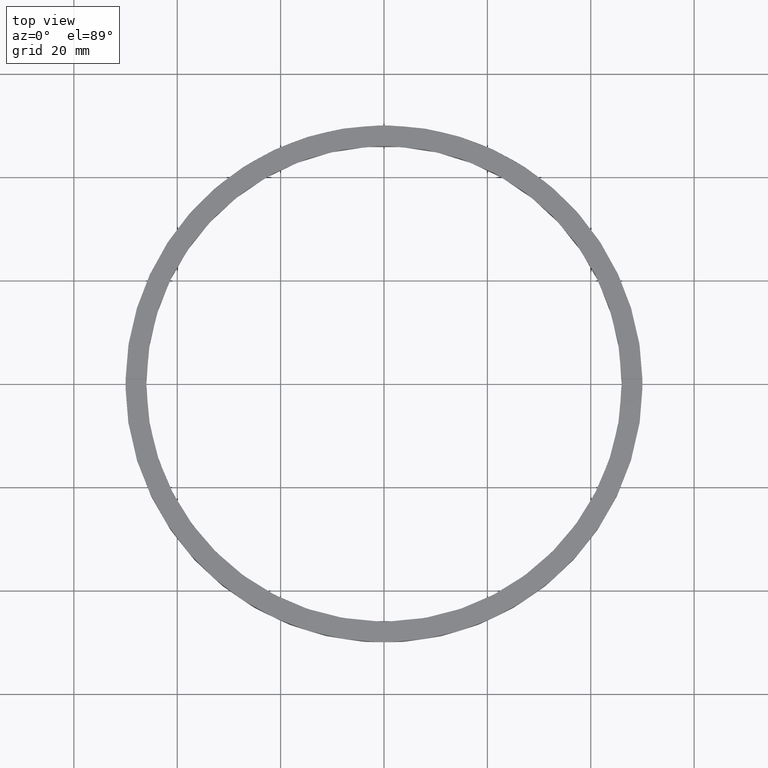
[diagram: clean part render]
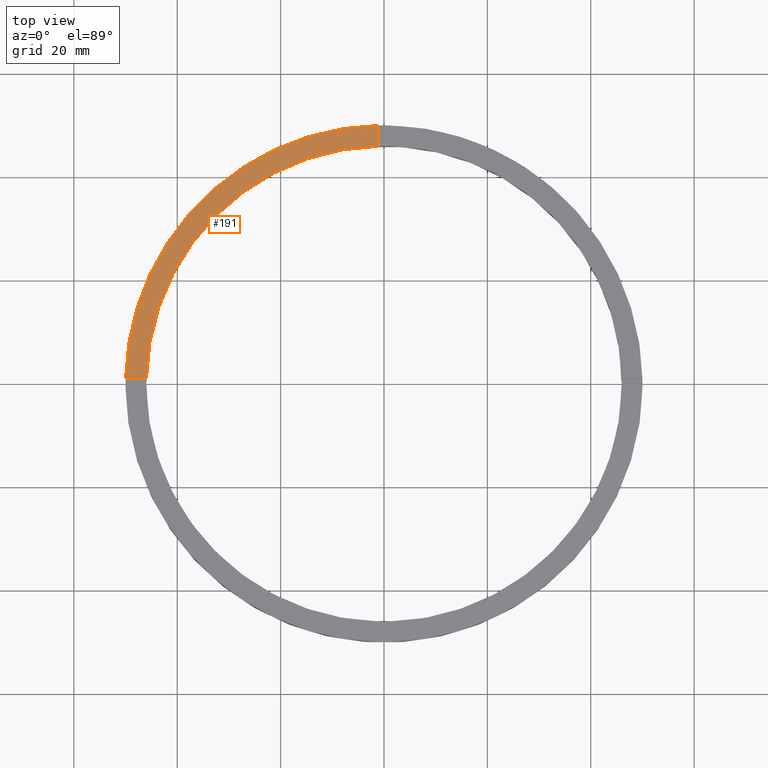
[diagram: same view with one face highlighted and labeled with its STEP entity id]
A machine part, top view. The second image highlights one B-rep face of the part: STEP entity #191.
In plain terms, the highlighted planar face has unit normal (0, 0, 1).
Its self-contained STEP definition (entity closure, byte-faithful):
#41 = EDGE_LOOP ( 'NONE', ( #381, #462, #100, #724 ) ) ;
#47 = VERTEX_POINT ( 'NONE', #343 ) ;
#67 = DIRECTION ( 'NONE',  ( 0.000000000000000000, 0.000000000000000000, 1.000000000000000000 ) ) ;
#95 = VERTEX_POINT ( 'NONE', #136 ) ;
#100 = ORIENTED_EDGE ( 'NONE', *, *, #532, .F. ) ;
#136 = CARTESIAN_POINT ( 'NONE',  ( -45.98912915026767223, 0.9999999999999694689, 5.000000000000000000 ) ) ;
#148 = CARTESIAN_POINT ( 'NONE',  ( -40.00000000000018474, 0.9999999999999705791, 5.000000000000000000 ) ) ;
#175 = CARTESIAN_POINT ( 'NONE',  ( 0.000000000000000000, 0.000000000000000000, 5.000000000000000000 ) ) ;
#191 = ADVANCED_FACE ( 'NONE', ( #587 ), #267, .T. ) ;
#197 = VERTEX_POINT ( 'NONE', #515 ) ;
#256 = CIRCLE ( 'NONE', #738, 50.00000000000000000 ) ;
#258 = VECTOR ( 'NONE', #533, 1000.000000000000000 ) ;
#267 = PLANE ( 'NONE',  #603 ) ;
#270 = EDGE_CURVE ( 'NONE', #47, #95, #584, .T. ) ;
#311 = DIRECTION ( 'NONE',  ( -1.000000000000000000, -1.951563910473907735E-16, 0.000000000000000000 ) ) ;
#327 = CARTESIAN_POINT ( 'NONE',  ( 0.000000000000000000, 0.000000000000000000, 5.000000000000000000 ) ) ;
#343 = CARTESIAN_POINT ( 'NONE',  ( -1.000000000000026867, 45.98912915026767223, 5.000000000000000000 ) ) ;
#358 = DIRECTION ( 'NONE',  ( 1.000000000000000000, 0.000000000000000000, -0.000000000000000000 ) ) ;
#372 = DIRECTION ( 'NONE',  ( 1.000000000000000000, 0.000000000000000000, 0.000000000000000000 ) ) ;
#381 = ORIENTED_EDGE ( 'NONE', *, *, #642, .F. ) ;
#413 = AXIS2_PLACEMENT_3D ( 'NONE', #327, #435, #610 ) ;
#435 = DIRECTION ( 'NONE',  ( 0.000000000000000000, 0.000000000000000000, 1.000000000000000000 ) ) ;
#462 = ORIENTED_EDGE ( 'NONE', *, *, #639, .T. ) ;
#491 = LINE ( 'NONE', #148, #755 ) ;
#515 = CARTESIAN_POINT ( 'NONE',  ( -1.000000000000026867, 49.98999899979995121, 5.000000000000000000 ) ) ;
#522 = CARTESIAN_POINT ( 'NONE',  ( -1.000000000000026867, 40.00000000000000000, 5.000000000000000000 ) ) ;
#532 = EDGE_CURVE ( 'NONE', #95, #686, #491, .T. ) ;
#533 = DIRECTION ( 'NONE',  ( -0.000000000000000000, -1.000000000000000000, -0.000000000000000000 ) ) ;
#553 = CARTESIAN_POINT ( 'NONE',  ( -49.98999899979995121, 0.9999999999999685807, 5.000000000000000000 ) ) ;
#564 = CARTESIAN_POINT ( 'NONE',  ( 0.000000000000000000, 0.000000000000000000, 5.000000000000000000 ) ) ;
#584 = CIRCLE ( 'NONE', #413, 46.00000000000000000 ) ;
#587 = FACE_OUTER_BOUND ( 'NONE', #41, .T. ) ;
#603 = AXIS2_PLACEMENT_3D ( 'NONE', #564, #67, #358 ) ;
#610 = DIRECTION ( 'NONE',  ( 1.000000000000000000, 0.000000000000000000, 0.000000000000000000 ) ) ;
#639 = EDGE_CURVE ( 'NONE', #197, #686, #256, .T. ) ;
#642 = EDGE_CURVE ( 'NONE', #197, #47, #781, .T. ) ;
#650 = DIRECTION ( 'NONE',  ( 0.000000000000000000, 0.000000000000000000, 1.000000000000000000 ) ) ;
#686 = VERTEX_POINT ( 'NONE', #553 ) ;
#724 = ORIENTED_EDGE ( 'NONE', *, *, #270, .F. ) ;
#738 = AXIS2_PLACEMENT_3D ( 'NONE', #175, #650, #372 ) ;
#755 = VECTOR ( 'NONE', #311, 1000.000000000000000 ) ;
#781 = LINE ( 'NONE', #522, #258 ) ;